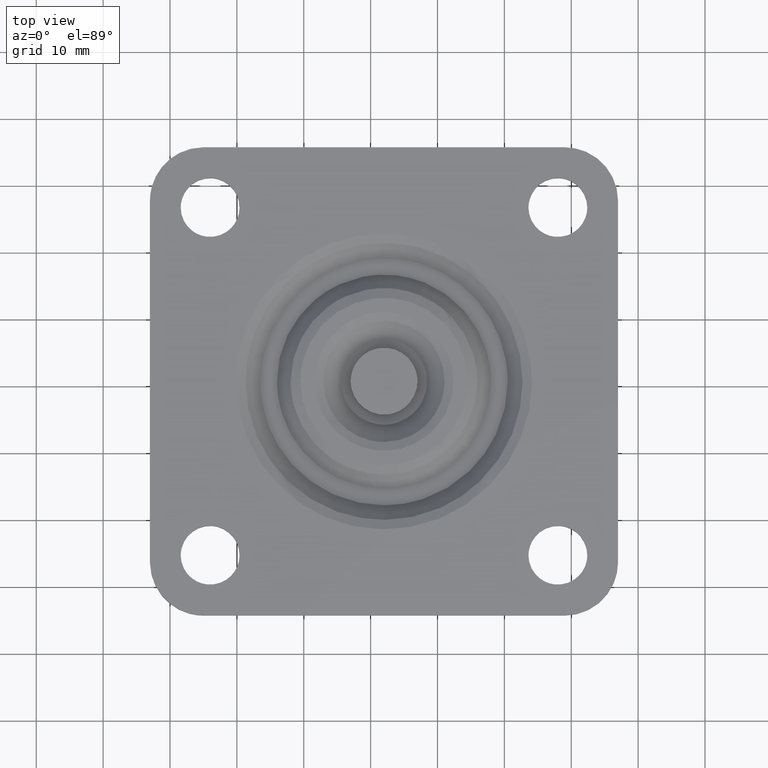
[diagram: clean part render]
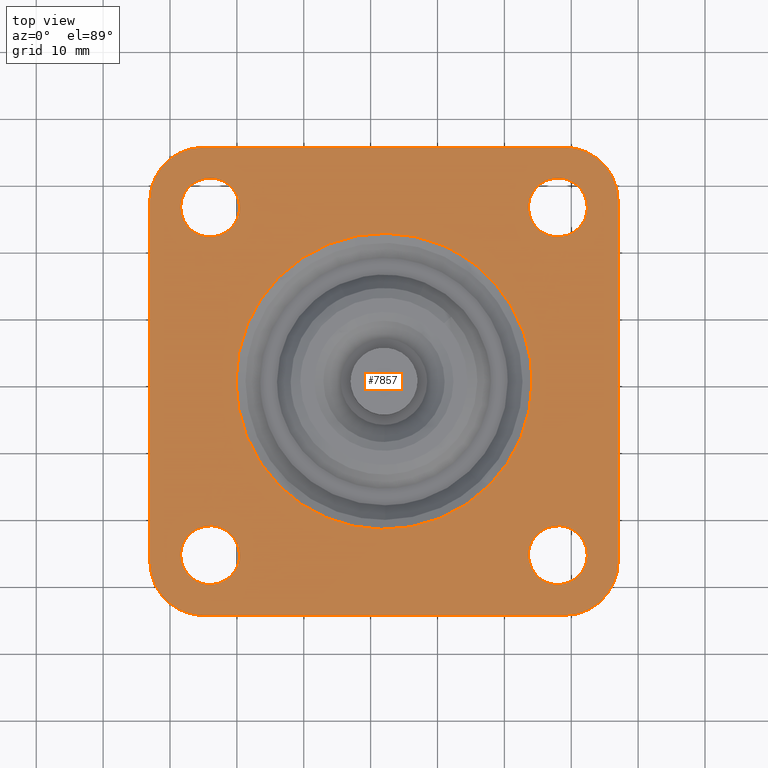
[diagram: same view with one face highlighted and labeled with its STEP entity id]
A machine part, top view. The second image highlights one B-rep face of the part: STEP entity #7857.
In plain terms, the highlighted face is a freeform B-spline surface patch.
Its self-contained STEP definition (entity closure, byte-faithful):
#2676=CARTESIAN_POINT('',(37.480649367378518,21.630758084015529,30.500000000000000));
#2677=VERTEX_POINT('',#2676);
#2683=CARTESIAN_POINT('',(42.399999999999999,26.0,30.500000000000000));
#2684=VERTEX_POINT('',#2683);
#2685=CARTESIAN_POINT('',(37.480649367378518,21.630758084015525,30.500000000000011));
#2686=CARTESIAN_POINT('',(37.739413873398469,21.600000000000001,30.500000000000000));
#2687=CARTESIAN_POINT('',(38.0,21.600000000000001,30.500000000000000));
#2688=CARTESIAN_POINT('',(42.400000000000006,21.600000000000005,30.499999999999996));
#2689=CARTESIAN_POINT('',(42.399999999999999,26.0,30.500000000000000));
#2697=(BOUNDED_CURVE()B_SPLINE_CURVE(2,(#2685,#2686,#2687,#2688,#2689),.UNSPECIFIED.,.F.,.U.)B_SPLINE_CURVE_WITH_KNOTS((3,2,3),(0.229562473505452,0.250000000000000,0.500000000000000),.UNSPECIFIED.)CURVE()GEOMETRIC_REPRESENTATION_ITEM()RATIONAL_B_SPLINE_CURVE((0.956026754167909,0.976055948321707,1.0,0.707106781186548,1.0))REPRESENTATION_ITEM(''));
#2698=EDGE_CURVE('',#2677,#2684,#2697,.T.);
#2700=CARTESIAN_POINT('',(38.268609173361057,30.391793382203549,30.500000000000000));
#2701=VERTEX_POINT('',#2700);
#2702=CARTESIAN_POINT('',(42.399999999999999,26.0,30.500000000000000));
#2703=CARTESIAN_POINT('',(42.399999999999999,30.139110849536582,30.499999999999996));
#2704=CARTESIAN_POINT('',(38.268609173361050,30.391793382203549,30.499999999999996));
#2712=(BOUNDED_CURVE()B_SPLINE_CURVE(2,(#2702,#2703,#2704),.UNSPECIFIED.,.F.,.U.)B_SPLINE_CURVE_WITH_KNOTS((3,3),(0.500000000000000,0.739333135134488),.UNSPECIFIED.)CURVE()GEOMETRIC_REPRESENTATION_ITEM()RATIONAL_B_SPLINE_CURVE((1.0,0.719603790726980,0.976072412215062))REPRESENTATION_ITEM(''));
#2713=EDGE_CURVE('',#2684,#2701,#2712,.T.);
#2787=CARTESIAN_POINT('',(33.600000000000001,26.0,30.500000000000000));
#2788=VERTEX_POINT('',#2787);
#2789=CARTESIAN_POINT('',(38.268609173361050,30.391793382203549,30.499999999999996));
#2790=CARTESIAN_POINT('',(38.134429952048386,30.399999999999999,30.500000000000004));
#2791=CARTESIAN_POINT('',(38.0,30.399999999999999,30.500000000000000));
#2792=CARTESIAN_POINT('',(33.600000000000001,30.400000000000002,30.499999999999996));
#2793=CARTESIAN_POINT('',(33.600000000000001,26.0,30.500000000000000));
#2801=(BOUNDED_CURVE()B_SPLINE_CURVE(2,(#2789,#2790,#2791,#2792,#2793),.UNSPECIFIED.,.F.,.U.)B_SPLINE_CURVE_WITH_KNOTS((3,2,3),(0.739333135134488,0.750000000000000,1.0),.UNSPECIFIED.)CURVE()GEOMETRIC_REPRESENTATION_ITEM()RATIONAL_B_SPLINE_CURVE((0.976072412215062,0.987502990459568,1.0,0.707106781186548,1.0))REPRESENTATION_ITEM(''));
#2802=EDGE_CURVE('',#2701,#2788,#2801,.T.);
#2804=CARTESIAN_POINT('',(33.600000000000001,26.0,30.500000000000000));
#2805=CARTESIAN_POINT('',(33.600000000000009,22.092032086051304,30.500000000000000));
#2806=CARTESIAN_POINT('',(37.480649367378518,21.630758084015525,30.500000000000007));
#2814=(BOUNDED_CURVE()B_SPLINE_CURVE(2,(#2804,#2805,#2806),.UNSPECIFIED.,.F.,.U.)B_SPLINE_CURVE_WITH_KNOTS((3,3),(0.0,0.229562473505452),.UNSPECIFIED.)CURVE()GEOMETRIC_REPRESENTATION_ITEM()RATIONAL_B_SPLINE_CURVE((1.0,0.731050832864841,0.956026754167909))REPRESENTATION_ITEM(''));
#2815=EDGE_CURVE('',#2788,#2677,#2814,.T.);
#2862=CARTESIAN_POINT('',(37.480649367378511,-30.369241915984471,30.500000000000000));
#2863=VERTEX_POINT('',#2862);
#2869=CARTESIAN_POINT('',(42.399999999999999,-26.0,30.500000000000000));
#2870=VERTEX_POINT('',#2869);
#2871=CARTESIAN_POINT('',(37.480649367378511,-30.369241915984475,30.500000000000007));
#2872=CARTESIAN_POINT('',(37.739413873398469,-30.399999999999999,30.500000000000000));
#2873=CARTESIAN_POINT('',(38.0,-30.399999999999999,30.500000000000000));
#2874=CARTESIAN_POINT('',(42.400000000000006,-30.400000000000002,30.499999999999996));
#2875=CARTESIAN_POINT('',(42.399999999999999,-26.0,30.500000000000000));
#2883=(BOUNDED_CURVE()B_SPLINE_CURVE(2,(#2871,#2872,#2873,#2874,#2875),.UNSPECIFIED.,.F.,.U.)B_SPLINE_CURVE_WITH_KNOTS((3,2,3),(0.229562473505452,0.250000000000000,0.500000000000000),.UNSPECIFIED.)CURVE()GEOMETRIC_REPRESENTATION_ITEM()RATIONAL_B_SPLINE_CURVE((0.956026754167909,0.976055948321707,1.0,0.707106781186548,1.0))REPRESENTATION_ITEM(''));
#2884=EDGE_CURVE('',#2863,#2870,#2883,.T.);
#2886=CARTESIAN_POINT('',(38.268609173361057,-21.608206617796458,30.500000000000000));
#2887=VERTEX_POINT('',#2886);
#2888=CARTESIAN_POINT('',(42.399999999999999,-26.0,30.500000000000000));
#2889=CARTESIAN_POINT('',(42.399999999999999,-21.860889150463418,30.499999999999996));
#2890=CARTESIAN_POINT('',(38.268609173361050,-21.608206617796458,30.499999999999996));
#2898=(BOUNDED_CURVE()B_SPLINE_CURVE(2,(#2888,#2889,#2890),.UNSPECIFIED.,.F.,.U.)B_SPLINE_CURVE_WITH_KNOTS((3,3),(0.500000000000000,0.739333135134488),.UNSPECIFIED.)CURVE()GEOMETRIC_REPRESENTATION_ITEM()RATIONAL_B_SPLINE_CURVE((1.0,0.719603790726980,0.976072412215062))REPRESENTATION_ITEM(''));
#2899=EDGE_CURVE('',#2870,#2887,#2898,.T.);
#2973=CARTESIAN_POINT('',(33.600000000000001,-26.0,30.500000000000000));
#2974=VERTEX_POINT('',#2973);
#2975=CARTESIAN_POINT('',(38.268609173361050,-21.608206617796458,30.499999999999996));
#2976=CARTESIAN_POINT('',(38.134429952048386,-21.599999999999998,30.500000000000004));
#2977=CARTESIAN_POINT('',(38.0,-21.600000000000001,30.500000000000000));
#2978=CARTESIAN_POINT('',(33.600000000000001,-21.600000000000005,30.499999999999996));
#2979=CARTESIAN_POINT('',(33.600000000000001,-26.0,30.500000000000000));
#2987=(BOUNDED_CURVE()B_SPLINE_CURVE(2,(#2975,#2976,#2977,#2978,#2979),.UNSPECIFIED.,.F.,.U.)B_SPLINE_CURVE_WITH_KNOTS((3,2,3),(0.739333135134488,0.750000000000000,1.0),.UNSPECIFIED.)CURVE()GEOMETRIC_REPRESENTATION_ITEM()RATIONAL_B_SPLINE_CURVE((0.976072412215062,0.987502990459568,1.0,0.707106781186548,1.0))REPRESENTATION_ITEM(''));
#2988=EDGE_CURVE('',#2887,#2974,#2987,.T.);
#2990=CARTESIAN_POINT('',(33.600000000000001,-26.0,30.500000000000000));
#2991=CARTESIAN_POINT('',(33.600000000000009,-29.907967913948674,30.500000000000000));
#2992=CARTESIAN_POINT('',(37.480649367378511,-30.369241915984475,30.500000000000007));
#3000=(BOUNDED_CURVE()B_SPLINE_CURVE(2,(#2990,#2991,#2992),.UNSPECIFIED.,.F.,.U.)B_SPLINE_CURVE_WITH_KNOTS((3,3),(0.0,0.229562473505452),.UNSPECIFIED.)CURVE()GEOMETRIC_REPRESENTATION_ITEM()RATIONAL_B_SPLINE_CURVE((1.0,0.731050832864841,0.956026754167909))REPRESENTATION_ITEM(''));
#3001=EDGE_CURVE('',#2974,#2863,#3000,.T.);
#3048=CARTESIAN_POINT('',(-14.519350632621480,-30.369241915984471,30.500000000000000));
#3049=VERTEX_POINT('',#3048);
#3055=CARTESIAN_POINT('',(-9.600000000000001,-26.0,30.500000000000000));
#3056=VERTEX_POINT('',#3055);
#3057=CARTESIAN_POINT('',(-14.519350632621483,-30.369241915984471,30.500000000000004));
#3058=CARTESIAN_POINT('',(-14.260586126601545,-30.400000000000006,30.499999999999996));
#3059=CARTESIAN_POINT('',(-14.0,-30.399999999999999,30.500000000000000));
#3060=CARTESIAN_POINT('',(-9.600000000000001,-30.400000000000002,30.499999999999996));
#3061=CARTESIAN_POINT('',(-9.600000000000001,-26.0,30.500000000000000));
#3069=(BOUNDED_CURVE()B_SPLINE_CURVE(2,(#3057,#3058,#3059,#3060,#3061),.UNSPECIFIED.,.F.,.U.)B_SPLINE_CURVE_WITH_KNOTS((3,2,3),(0.229562473505453,0.250000000000000,0.500000000000000),.UNSPECIFIED.)CURVE()GEOMETRIC_REPRESENTATION_ITEM()RATIONAL_B_SPLINE_CURVE((0.956026754167910,0.976055948321707,1.0,0.707106781186548,1.0))REPRESENTATION_ITEM(''));
#3070=EDGE_CURVE('',#3049,#3056,#3069,.T.);
#3072=CARTESIAN_POINT('',(-13.731390826638950,-21.608206617796458,30.500000000000000));
#3073=VERTEX_POINT('',#3072);
#3074=CARTESIAN_POINT('',(-9.600000000000001,-26.0,30.500000000000000));
#3075=CARTESIAN_POINT('',(-9.600000000000001,-21.860889150463422,30.500000000000004));
#3076=CARTESIAN_POINT('',(-13.731390826638950,-21.608206617796455,30.500000000000000));
#3084=(BOUNDED_CURVE()B_SPLINE_CURVE(2,(#3074,#3075,#3076),.UNSPECIFIED.,.F.,.U.)B_SPLINE_CURVE_WITH_KNOTS((3,3),(0.500000000000000,0.739333135134488),.UNSPECIFIED.)CURVE()GEOMETRIC_REPRESENTATION_ITEM()RATIONAL_B_SPLINE_CURVE((1.0,0.719603790726980,0.976072412215062))REPRESENTATION_ITEM(''));
#3085=EDGE_CURVE('',#3056,#3073,#3084,.T.);
#3159=CARTESIAN_POINT('',(-18.399999999999999,-26.0,30.500000000000000));
#3160=VERTEX_POINT('',#3159);
#3161=CARTESIAN_POINT('',(-13.731390826638943,-21.608206617796458,30.499999999999996));
#3162=CARTESIAN_POINT('',(-13.865570047951612,-21.599999999999998,30.500000000000004));
#3163=CARTESIAN_POINT('',(-14.0,-21.600000000000001,30.500000000000000));
#3164=CARTESIAN_POINT('',(-18.399999999999991,-21.600000000000005,30.499999999999996));
#3165=CARTESIAN_POINT('',(-18.399999999999999,-26.0,30.500000000000000));
#3173=(BOUNDED_CURVE()B_SPLINE_CURVE(2,(#3161,#3162,#3163,#3164,#3165),.UNSPECIFIED.,.F.,.U.)B_SPLINE_CURVE_WITH_KNOTS((3,2,3),(0.739333135134488,0.750000000000000,1.0),.UNSPECIFIED.)CURVE()GEOMETRIC_REPRESENTATION_ITEM()RATIONAL_B_SPLINE_CURVE((0.976072412215062,0.987502990459568,1.0,0.707106781186548,1.0))REPRESENTATION_ITEM(''));
#3174=EDGE_CURVE('',#3073,#3160,#3173,.T.);
#3176=CARTESIAN_POINT('',(-18.399999999999999,-26.0,30.500000000000000));
#3177=CARTESIAN_POINT('',(-18.399999999999991,-29.907967913948696,30.500000000000004));
#3178=CARTESIAN_POINT('',(-14.519350632621483,-30.369241915984471,30.500000000000004));
#3186=(BOUNDED_CURVE()B_SPLINE_CURVE(2,(#3176,#3177,#3178),.UNSPECIFIED.,.F.,.U.)B_SPLINE_CURVE_WITH_KNOTS((3,3),(0.0,0.229562473505453),.UNSPECIFIED.)CURVE()GEOMETRIC_REPRESENTATION_ITEM()RATIONAL_B_SPLINE_CURVE((1.0,0.731050832864841,0.956026754167910))REPRESENTATION_ITEM(''));
#3187=EDGE_CURVE('',#3160,#3049,#3186,.T.);
#3234=CARTESIAN_POINT('',(-14.519350632621480,21.630758084015529,30.500000000000000));
#3235=VERTEX_POINT('',#3234);
#3241=CARTESIAN_POINT('',(-9.600000000000001,26.0,30.500000000000000));
#3242=VERTEX_POINT('',#3241);
#3243=CARTESIAN_POINT('',(-14.519350632621480,21.630758084015529,30.500000000000004));
#3244=CARTESIAN_POINT('',(-14.260586126601543,21.599999999999994,30.500000000000004));
#3245=CARTESIAN_POINT('',(-14.0,21.600000000000001,30.500000000000000));
#3246=CARTESIAN_POINT('',(-9.600000000000001,21.600000000000005,30.499999999999996));
#3247=CARTESIAN_POINT('',(-9.600000000000001,26.0,30.500000000000000));
#3255=(BOUNDED_CURVE()B_SPLINE_CURVE(2,(#3243,#3244,#3245,#3246,#3247),.UNSPECIFIED.,.F.,.U.)B_SPLINE_CURVE_WITH_KNOTS((3,2,3),(0.229562473505453,0.250000000000000,0.500000000000000),.UNSPECIFIED.)CURVE()GEOMETRIC_REPRESENTATION_ITEM()RATIONAL_B_SPLINE_CURVE((0.956026754167910,0.976055948321707,1.0,0.707106781186548,1.0))REPRESENTATION_ITEM(''));
#3256=EDGE_CURVE('',#3235,#3242,#3255,.T.);
#3258=CARTESIAN_POINT('',(-13.731390826638950,30.391793382203542,30.500000000000000));
#3259=VERTEX_POINT('',#3258);
#3260=CARTESIAN_POINT('',(-9.600000000000001,26.0,30.500000000000000));
#3261=CARTESIAN_POINT('',(-9.600000000000001,30.139110849536575,30.500000000000004));
#3262=CARTESIAN_POINT('',(-13.731390826638950,30.391793382203542,30.500000000000000));
#3270=(BOUNDED_CURVE()B_SPLINE_CURVE(2,(#3260,#3261,#3262),.UNSPECIFIED.,.F.,.U.)B_SPLINE_CURVE_WITH_KNOTS((3,3),(0.500000000000000,0.739333135134488),.UNSPECIFIED.)CURVE()GEOMETRIC_REPRESENTATION_ITEM()RATIONAL_B_SPLINE_CURVE((1.0,0.719603790726980,0.976072412215062))REPRESENTATION_ITEM(''));
#3271=EDGE_CURVE('',#3242,#3259,#3270,.T.);
#3345=CARTESIAN_POINT('',(-18.399999999999999,26.0,30.500000000000000));
#3346=VERTEX_POINT('',#3345);
#3347=CARTESIAN_POINT('',(-13.731390826638943,30.391793382203538,30.499999999999996));
#3348=CARTESIAN_POINT('',(-13.865570047951612,30.399999999999999,30.500000000000004));
#3349=CARTESIAN_POINT('',(-14.0,30.399999999999999,30.500000000000000));
#3350=CARTESIAN_POINT('',(-18.399999999999991,30.400000000000002,30.499999999999996));
#3351=CARTESIAN_POINT('',(-18.399999999999999,26.0,30.500000000000000));
#3359=(BOUNDED_CURVE()B_SPLINE_CURVE(2,(#3347,#3348,#3349,#3350,#3351),.UNSPECIFIED.,.F.,.U.)B_SPLINE_CURVE_WITH_KNOTS((3,2,3),(0.739333135134488,0.750000000000000,1.0),.UNSPECIFIED.)CURVE()GEOMETRIC_REPRESENTATION_ITEM()RATIONAL_B_SPLINE_CURVE((0.976072412215062,0.987502990459568,1.0,0.707106781186548,1.0))REPRESENTATION_ITEM(''));
#3360=EDGE_CURVE('',#3259,#3346,#3359,.T.);
#3362=CARTESIAN_POINT('',(-18.399999999999999,26.0,30.500000000000000));
#3363=CARTESIAN_POINT('',(-18.399999999999991,22.092032086051308,30.500000000000004));
#3364=CARTESIAN_POINT('',(-14.519350632621483,21.630758084015522,30.500000000000004));
#3372=(BOUNDED_CURVE()B_SPLINE_CURVE(2,(#3362,#3363,#3364),.UNSPECIFIED.,.F.,.U.)B_SPLINE_CURVE_WITH_KNOTS((3,3),(0.0,0.229562473505453),.UNSPECIFIED.)CURVE()GEOMETRIC_REPRESENTATION_ITEM()RATIONAL_B_SPLINE_CURVE((1.0,0.731050832864841,0.956026754167910))REPRESENTATION_ITEM(''));
#3373=EDGE_CURVE('',#3346,#3235,#3372,.T.);
#6881=CARTESIAN_POINT('',(-3.747734692215326,15.551075877579690,30.500000000000000));
#6882=VERTEX_POINT('',#6881);
#6896=CARTESIAN_POINT('',(-10.132038065938451,0.0,30.500000000000000));
#6897=VERTEX_POINT('',#6896);
#6898=CARTESIAN_POINT('',(-10.132038065938451,0.0,30.500000000000000));
#6899=CARTESIAN_POINT('',(-10.132038065938449,9.086036642822240,30.499999999999996));
#6900=CARTESIAN_POINT('',(-3.747734692215327,15.551075877579699,30.500000000000000));
#6908=(BOUNDED_CURVE()B_SPLINE_CURVE(2,(#6898,#6899,#6900),.UNSPECIFIED.,.F.,.U.)B_SPLINE_CURVE_WITH_KNOTS((3,3),(0.0,0.124051937432046),.UNSPECIFIED.)CURVE()GEOMETRIC_REPRESENTATION_ITEM()RATIONAL_B_SPLINE_CURVE((1.0,0.854664114981933,0.853561814883003))REPRESENTATION_ITEM(''));
#6909=EDGE_CURVE('',#6897,#6882,#6908,.T.);
#6911=CARTESIAN_POINT('',(34.132038065938453,0.0,30.500000000000000));
#6912=VERTEX_POINT('',#6911);
#6913=CARTESIAN_POINT('',(34.132038065938453,0.0,30.500000000000000));
#6914=CARTESIAN_POINT('',(34.132038065938445,-22.132038065938449,30.499999999999996));
#6915=CARTESIAN_POINT('',(12.0,-22.132038065938449,30.500000000000000));
#6916=CARTESIAN_POINT('',(-10.132038065938449,-22.132038065938449,30.499999999999996));
#6917=CARTESIAN_POINT('',(-10.132038065938451,0.0,30.500000000000000));
#6925=(BOUNDED_CURVE()B_SPLINE_CURVE(2,(#6913,#6914,#6915,#6916,#6917),.UNSPECIFIED.,.F.,.U.)B_SPLINE_CURVE_WITH_KNOTS((3,2,3),(0.500000000000000,0.750000000000000,1.0),.UNSPECIFIED.)CURVE()GEOMETRIC_REPRESENTATION_ITEM()RATIONAL_B_SPLINE_CURVE((1.0,0.707106781186548,1.0,0.707106781186548,1.0))REPRESENTATION_ITEM(''));
#6926=EDGE_CURVE('',#6912,#6897,#6925,.T.);
#6928=CARTESIAN_POINT('',(25.628764615826501,17.438001146815090,30.500000000000000));
#6929=VERTEX_POINT('',#6928);
#6930=CARTESIAN_POINT('',(25.628764615826494,17.438001146815090,30.500000000000004));
#6931=CARTESIAN_POINT('',(34.132038065938453,10.792221545197508,30.500000000000000));
#6932=CARTESIAN_POINT('',(34.132038065938453,0.0,30.500000000000000));
#6940=(BOUNDED_CURVE()B_SPLINE_CURVE(2,(#6930,#6931,#6932),.UNSPECIFIED.,.F.,.U.)B_SPLINE_CURVE_WITH_KNOTS((3,3),(0.356567917885046,0.500000000000000),.UNSPECIFIED.)CURVE()GEOMETRIC_REPRESENTATION_ITEM()RATIONAL_B_SPLINE_CURVE((0.856737647417384,0.831958863152943,1.0))REPRESENTATION_ITEM(''));
#6941=EDGE_CURVE('',#6929,#6912,#6940,.T.);
#6978=CARTESIAN_POINT('',(-3.747734692215326,15.551075877579697,30.499999999999996));
#6979=CARTESIAN_POINT('',(2.751043976979531,22.132038065938445,30.500000000000000));
#6980=CARTESIAN_POINT('',(12.0,22.132038065938449,30.500000000000000));
#6981=CARTESIAN_POINT('',(19.622745472852184,22.132038065938449,30.500000000000004));
#6982=CARTESIAN_POINT('',(25.628764615826501,17.438001146815086,30.499999999999996));
#6990=(BOUNDED_CURVE()B_SPLINE_CURVE(2,(#6978,#6979,#6980,#6981,#6982),.UNSPECIFIED.,.F.,.U.)B_SPLINE_CURVE_WITH_KNOTS((3,2,3),(0.124051937432046,0.250000000000000,0.356567917885046),.UNSPECIFIED.)CURVE()GEOMETRIC_REPRESENTATION_ITEM()RATIONAL_B_SPLINE_CURVE((0.853561814883003,0.852442666204615,1.0,0.875147918033604,0.856737647417384))REPRESENTATION_ITEM(''));
#6991=EDGE_CURVE('',#6882,#6929,#6990,.T.);
#7439=CARTESIAN_POINT('',(38.999999860373649,34.999995999999797,30.500000000000000));
#7440=VERTEX_POINT('',#7439);
#7441=CARTESIAN_POINT('',(-15.0,34.999995999999797,30.500000000000000));
#7442=VERTEX_POINT('',#7441);
#7443=CARTESIAN_POINT('',(38.999999860373649,34.999995999999797,30.500000000000000));
#7444=CARTESIAN_POINT('',(-15.0,34.999995999999797,30.500000000000000));
#7445=QUASI_UNIFORM_CURVE('',1,(#7443,#7444),.UNSPECIFIED.,.F.,.U.);
#7446=EDGE_CURVE('',#7440,#7442,#7445,.T.);
#7484=CARTESIAN_POINT('',(47.0,26.999995999999800,30.500000000000000));
#7485=VERTEX_POINT('',#7484);
#7486=CARTESIAN_POINT('',(47.0,26.999995999999800,30.500000000000000));
#7487=CARTESIAN_POINT('',(47.0,30.313704539880177,30.500000000000004));
#7488=CARTESIAN_POINT('',(44.656854200127007,32.656850298857549,30.500000000000000));
#7489=CARTESIAN_POINT('',(42.313708400254022,34.999996057834927,30.500000000000004));
#7490=CARTESIAN_POINT('',(38.999999860373649,34.999995999999797,30.500000000000000));
#7498=(BOUNDED_CURVE()B_SPLINE_CURVE(2,(#7486,#7487,#7488,#7489,#7490),.UNSPECIFIED.,.F.,.U.)B_SPLINE_CURVE_WITH_KNOTS((3,2,3),(0.0,0.500000000000000,1.0),.UNSPECIFIED.)CURVE()GEOMETRIC_REPRESENTATION_ITEM()RATIONAL_B_SPLINE_CURVE((1.0,0.923879530841515,1.0,0.923879530841515,1.0))REPRESENTATION_ITEM(''));
#7499=EDGE_CURVE('',#7485,#7440,#7498,.T.);
#7532=CARTESIAN_POINT('',(47.0,-26.999999860373649,30.500000000000000));
#7533=VERTEX_POINT('',#7532);
#7534=CARTESIAN_POINT('',(47.0,-26.999999860373649,30.500000000000000));
#7535=CARTESIAN_POINT('',(47.0,26.999995999999800,30.500000000000000));
#7536=QUASI_UNIFORM_CURVE('',1,(#7534,#7535),.UNSPECIFIED.,.F.,.U.);
#7537=EDGE_CURVE('',#7533,#7485,#7536,.T.);
#7569=CARTESIAN_POINT('',(39.0,-35.0,30.500000000000000));
#7570=VERTEX_POINT('',#7569);
#7571=CARTESIAN_POINT('',(39.0,-35.0,30.500000000000000));
#7572=CARTESIAN_POINT('',(42.313708539880359,-35.0,30.500000000000000));
#7573=CARTESIAN_POINT('',(44.656854298857752,-32.656854200127022,30.500000000000000));
#7574=CARTESIAN_POINT('',(47.000000057835116,-30.313708400254022,30.500000000000000));
#7575=CARTESIAN_POINT('',(47.0,-26.999999860373659,30.500000000000000));
#7583=(BOUNDED_CURVE()B_SPLINE_CURVE(2,(#7571,#7572,#7573,#7574,#7575),.UNSPECIFIED.,.F.,.U.)B_SPLINE_CURVE_WITH_KNOTS((3,2,3),(0.0,0.500000000000000,1.0),.UNSPECIFIED.)CURVE()GEOMETRIC_REPRESENTATION_ITEM()RATIONAL_B_SPLINE_CURVE((1.0,0.923879530841515,1.0,0.923879530841515,1.0))REPRESENTATION_ITEM(''));
#7584=EDGE_CURVE('',#7570,#7533,#7583,.T.);
#7617=CARTESIAN_POINT('',(-15.000001256637050,-35.0,30.500000000000000));
#7618=VERTEX_POINT('',#7617);
#7619=CARTESIAN_POINT('',(-15.000001256637050,-35.0,30.500000000000000));
#7620=CARTESIAN_POINT('',(39.0,-35.0,30.500000000000000));
#7621=QUASI_UNIFORM_CURVE('',1,(#7619,#7620),.UNSPECIFIED.,.F.,.U.);
#7622=EDGE_CURVE('',#7618,#7570,#7621,.T.);
#7654=CARTESIAN_POINT('',(-23.0,-27.0,30.500000000000000));
#7655=VERTEX_POINT('',#7654);
#7656=CARTESIAN_POINT('',(-23.0,-27.0,30.500000000000000));
#7657=CARTESIAN_POINT('',(-22.999999999999996,-34.999998743363044,30.499999999999993));
#7658=CARTESIAN_POINT('',(-15.000001256637050,-34.999999999999901,30.500000000000000));
#7666=(BOUNDED_CURVE()B_SPLINE_CURVE(2,(#7656,#7657,#7658),.UNSPECIFIED.,.F.,.U.)CURVE()GEOMETRIC_REPRESENTATION_ITEM()QUASI_UNIFORM_CURVE()RATIONAL_B_SPLINE_CURVE((1.0,0.707106836722581,1.0))REPRESENTATION_ITEM(''));
#7667=EDGE_CURVE('',#7655,#7618,#7666,.T.);
#7698=CARTESIAN_POINT('',(-23.0,26.999995999999800,30.500000000000000));
#7699=VERTEX_POINT('',#7698);
#7700=CARTESIAN_POINT('',(-23.0,26.999995999999800,30.500000000000000));
#7701=CARTESIAN_POINT('',(-23.0,-27.0,30.500000000000000));
#7702=QUASI_UNIFORM_CURVE('',1,(#7700,#7701),.UNSPECIFIED.,.F.,.U.);
#7703=EDGE_CURVE('',#7699,#7655,#7702,.T.);
#7735=CARTESIAN_POINT('',(-15.0,34.999995999999797,30.500000000000000));
#7736=CARTESIAN_POINT('',(-22.999999999999993,34.999995999999804,30.499999999999996));
#7737=CARTESIAN_POINT('',(-23.0,26.999995999999800,30.500000000000000));
#7745=(BOUNDED_CURVE()B_SPLINE_CURVE(2,(#7735,#7736,#7737),.UNSPECIFIED.,.F.,.U.)CURVE()GEOMETRIC_REPRESENTATION_ITEM()QUASI_UNIFORM_CURVE()RATIONAL_B_SPLINE_CURVE((1.0,0.707106781186548,1.0))REPRESENTATION_ITEM(''));
#7746=EDGE_CURVE('',#7442,#7699,#7745,.T.);
#7812=CARTESIAN_POINT('',(-26.496499864326420,38.496496321636087,30.500000000000000));
#7813=CARTESIAN_POINT('',(50.496501741872727,38.496496321636087,30.500000000000000));
#7814=CARTESIAN_POINT('',(-26.496499864326420,-38.496501573333759,30.500000000000000));
#7815=CARTESIAN_POINT('',(50.496501741872727,-38.496501573333759,30.500000000000000));
#7816=B_SPLINE_SURFACE_WITH_KNOTS('',1,1,((#7812,#7814),(#7813,#7815)),.UNSPECIFIED.,.F.,.F.,.U.,(2,2),(2,2),(0.0,76.993001606199158),(0.0,76.992997894969847),.UNSPECIFIED.);
#7817=ORIENTED_EDGE('',*,*,#7746,.T.);
#7818=ORIENTED_EDGE('',*,*,#7703,.T.);
#7819=ORIENTED_EDGE('',*,*,#7667,.T.);
#7820=ORIENTED_EDGE('',*,*,#7622,.T.);
#7821=ORIENTED_EDGE('',*,*,#7584,.T.);
#7822=ORIENTED_EDGE('',*,*,#7537,.T.);
#7823=ORIENTED_EDGE('',*,*,#7499,.T.);
#7824=ORIENTED_EDGE('',*,*,#7446,.T.);
#7825=EDGE_LOOP('',(#7817,#7818,#7819,#7820,#7821,#7822,#7823,#7824));
#7826=FACE_OUTER_BOUND('',#7825,.T.);
#7827=ORIENTED_EDGE('',*,*,#6926,.T.);
#7828=ORIENTED_EDGE('',*,*,#6909,.T.);
#7829=ORIENTED_EDGE('',*,*,#6991,.T.);
#7830=ORIENTED_EDGE('',*,*,#6941,.T.);
#7831=EDGE_LOOP('',(#7827,#7828,#7829,#7830));
#7832=FACE_BOUND('',#7831,.T.);
#7833=ORIENTED_EDGE('',*,*,#3271,.F.);
#7834=ORIENTED_EDGE('',*,*,#3256,.F.);
#7835=ORIENTED_EDGE('',*,*,#3373,.F.);
#7836=ORIENTED_EDGE('',*,*,#3360,.F.);
#7837=EDGE_LOOP('',(#7833,#7834,#7835,#7836));
#7838=FACE_BOUND('',#7837,.T.);
#7839=ORIENTED_EDGE('',*,*,#3085,.F.);
#7840=ORIENTED_EDGE('',*,*,#3070,.F.);
#7841=ORIENTED_EDGE('',*,*,#3187,.F.);
#7842=ORIENTED_EDGE('',*,*,#3174,.F.);
#7843=EDGE_LOOP('',(#7839,#7840,#7841,#7842));
#7844=FACE_BOUND('',#7843,.T.);
#7845=ORIENTED_EDGE('',*,*,#2899,.F.);
#7846=ORIENTED_EDGE('',*,*,#2884,.F.);
#7847=ORIENTED_EDGE('',*,*,#3001,.F.);
#7848=ORIENTED_EDGE('',*,*,#2988,.F.);
#7849=EDGE_LOOP('',(#7845,#7846,#7847,#7848));
#7850=FACE_BOUND('',#7849,.T.);
#7851=ORIENTED_EDGE('',*,*,#2713,.F.);
#7852=ORIENTED_EDGE('',*,*,#2698,.F.);
#7853=ORIENTED_EDGE('',*,*,#2815,.F.);
#7854=ORIENTED_EDGE('',*,*,#2802,.F.);
#7855=EDGE_LOOP('',(#7851,#7852,#7853,#7854));
#7856=FACE_BOUND('',#7855,.T.);
#7857=ADVANCED_FACE('',(#7826,#7832,#7838,#7844,#7850,#7856),#7816,.F.);